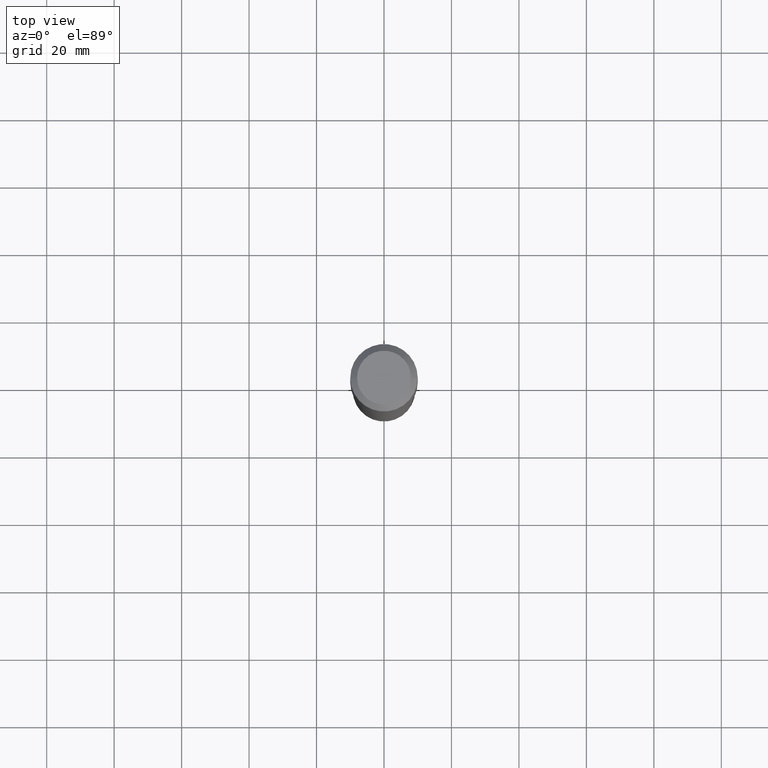
[diagram: clean part render]
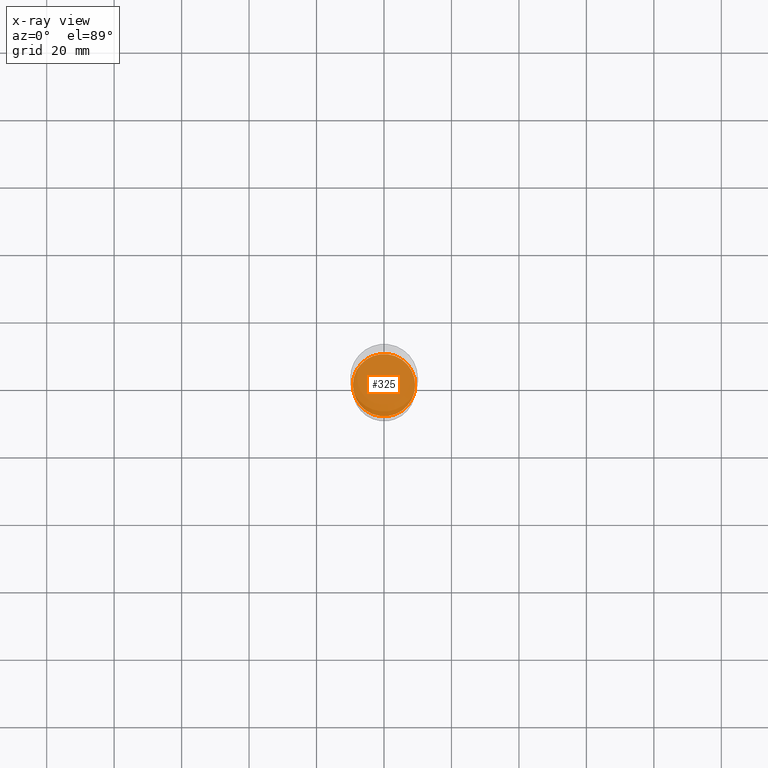
[diagram: x-ray — body ghosted, one internal face saturated and labeled with its STEP entity id]
A machine part, top view, then the same camera in x-ray: the body is ghosted and one INTERNAL B-rep face — a face not visible from any outside direction — is saturated and labeled: STEP entity #325.
In plain terms, the highlighted planar face has unit normal (-0, 0, 1).
Its self-contained STEP definition (entity closure, byte-faithful):
#23 = AXIS2_PLACEMENT_3D ( 'NONE', #342, #95, #300 ) ;
#41 = DIRECTION ( 'NONE',  ( 1.000000000000000000, -6.982962677686269866E-15, 0.000000000000000000 ) ) ;
#72 = DIRECTION ( 'NONE',  ( -2.445468806185136597E-29, 3.491481338843145583E-15, 1.000000000000000000 ) ) ;
#95 = DIRECTION ( 'NONE',  ( -2.438088387897960049E-29, 3.491481338843145188E-15, 1.000000000000000000 ) ) ;
#102 = ORIENTED_EDGE ( 'NONE', *, *, #490, .F. ) ;
#105 = DIRECTION ( 'NONE',  ( 1.000000000000000000, -6.982962677686269866E-15, 0.000000000000000000 ) ) ;
#113 = CARTESIAN_POINT ( 'NONE',  ( -0.3636500000000000288, -1.509990998427812883E-14, -5.065600000000001657 ) ) ;
#127 = EDGE_LOOP ( 'NONE', ( #282, #102 ) ) ;
#180 = CARTESIAN_POINT ( 'NONE',  ( 1.238776678461143074E-28, -1.768644787004384378E-14, -5.065600000000001657 ) ) ;
#207 = VERTEX_POINT ( 'NONE', #497 ) ;
#241 = EDGE_CURVE ( 'NONE', #207, #496, #340, .T. ) ;
#282 = ORIENTED_EDGE ( 'NONE', *, *, #241, .F. ) ;
#286 = CIRCLE ( 'NONE', #377, 0.3636500000000000288 ) ;
#296 = FACE_OUTER_BOUND ( 'NONE', #127, .T. ) ;
#300 = DIRECTION ( 'NONE',  ( 1.000000000000000000, -6.982962677686265922E-15, 4.876176775795935793E-29 ) ) ;
#325 = ADVANCED_FACE ( 'NONE', ( #296 ), #467, .F. ) ;
#340 = CIRCLE ( 'NONE', #500, 0.3636500000000000288 ) ;
#342 = CARTESIAN_POINT ( 'NONE',  ( 1.238776678461143074E-28, -1.768644787004384378E-14, -5.065600000000001657 ) ) ;
#377 = AXIS2_PLACEMENT_3D ( 'NONE', #486, #399, #41 ) ;
#399 = DIRECTION ( 'NONE',  ( -2.445468806185136597E-29, 3.491481338843145583E-15, 1.000000000000000000 ) ) ;
#467 = PLANE ( 'NONE',  #23 ) ;
#486 = CARTESIAN_POINT ( 'NONE',  ( 1.238776678461143074E-28, -1.768644787004384378E-14, -5.065600000000001657 ) ) ;
#490 = EDGE_CURVE ( 'NONE', #496, #207, #286, .T. ) ;
#496 = VERTEX_POINT ( 'NONE', #113 ) ;
#497 = CARTESIAN_POINT ( 'NONE',  ( 0.3636500000000000288, -2.022580224778445516E-14, -5.065600000000001657 ) ) ;
#500 = AXIS2_PLACEMENT_3D ( 'NONE', #180, #72, #105 ) ;